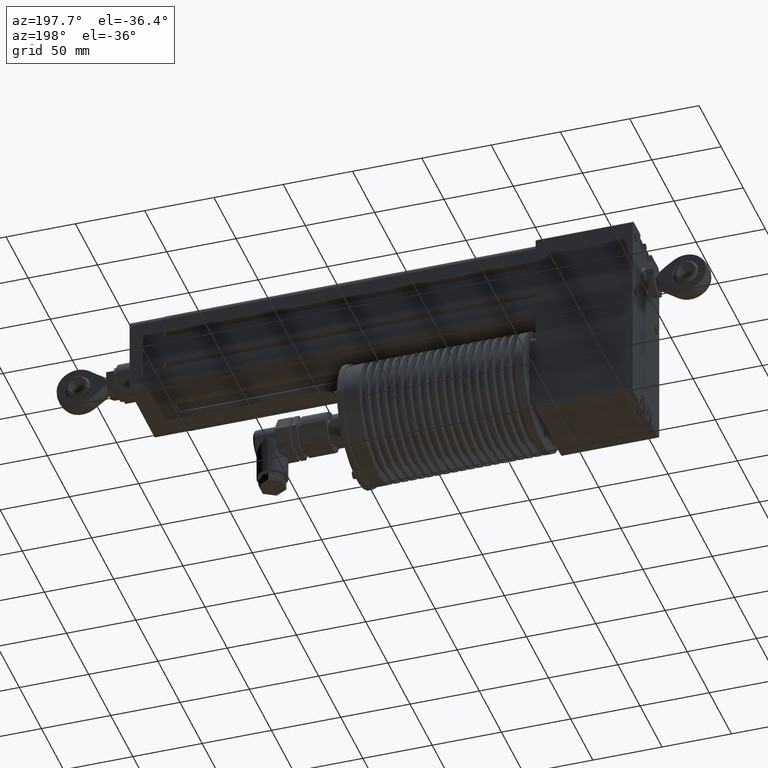
[diagram: clean part render]
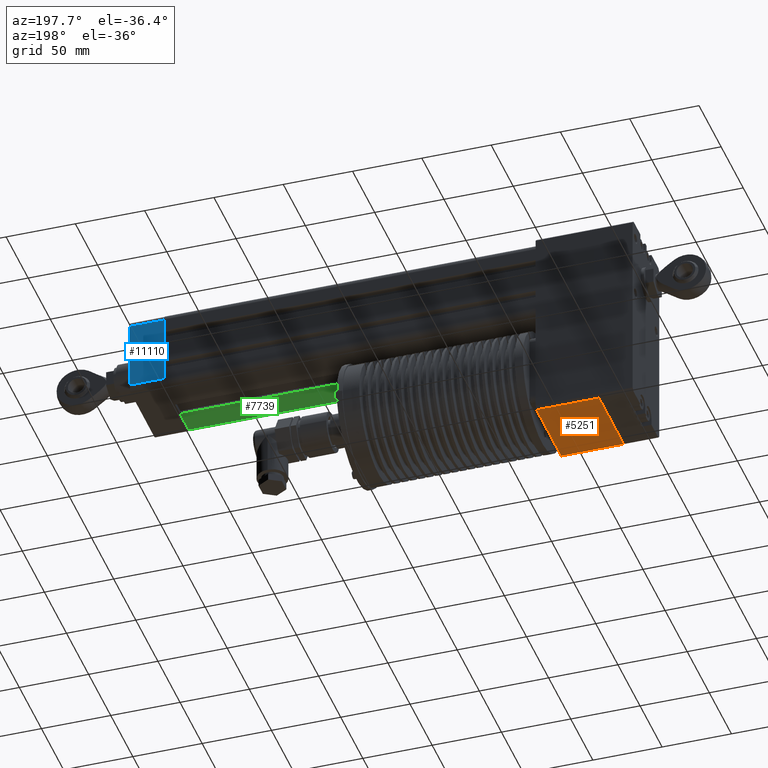
[diagram: same view with three faces highlighted in distinct colors, each labeled with its STEP entity id]
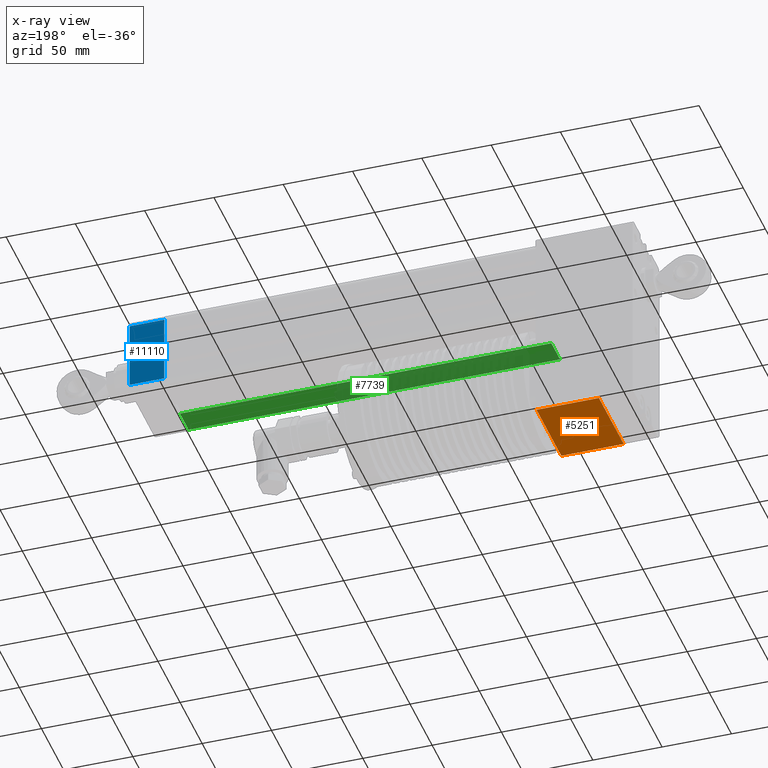
[diagram: x-ray of the same camera — body ghosted, the three highlighted faces saturated]
A machine part, auxiliary view with three faces highlighted in distinct colors.
The next image is the same camera in x-ray (body ghosted, the three faces saturated) — at least one of them is partly hidden behind the body in this view.
Their STEP definitions:

[orange] entity #5251 — the highlighted planar face has unit normal (-0, 0, -1).
#3421=CARTESIAN_POINT('',(85.0,28.000000000000007,-20.0));
#3422=VERTEX_POINT('',#3421);
#3429=CARTESIAN_POINT('',(85.0,-28.000000000000007,-20.0));
#3430=VERTEX_POINT('',#3429);
#3431=CARTESIAN_POINT('',(85.0,28.000000000000007,-20.0));
#3432=DIRECTION('',(0.0,-1.0,0.0));
#3433=VECTOR('',#3432,56.000000000000014);
#3434=LINE('',#3431,#3433);
#3435=EDGE_CURVE('',#3422,#3430,#3434,.T.);
#5209=CARTESIAN_POINT('',(85.0,-28.000000000000007,25.0));
#5210=VERTEX_POINT('',#5209);
#5219=CARTESIAN_POINT('',(85.0,-28.000000000000007,-20.0));
#5220=DIRECTION('',(0.0,0.0,1.0));
#5221=VECTOR('',#5220,45.0);
#5222=LINE('',#5219,#5221);
#5223=EDGE_CURVE('',#3430,#5210,#5222,.T.);
#5228=CARTESIAN_POINT('',(85.0,30.000000000000007,-20.0));
#5229=DIRECTION('',(1.0,0.0,0.0));
#5230=DIRECTION('',(0.0,0.0,-1.0));
#5231=AXIS2_PLACEMENT_3D('',#5228,#5229,#5230);
#5232=PLANE('',#5231);
#5233=ORIENTED_EDGE('',*,*,#5223,.F.);
#5234=ORIENTED_EDGE('',*,*,#3435,.F.);
#5235=CARTESIAN_POINT('',(85.0,28.000000000000007,25.0));
#5236=VERTEX_POINT('',#5235);
#5237=CARTESIAN_POINT('',(85.0,28.000000000000007,25.0));
#5238=DIRECTION('',(0.0,0.0,-1.0));
#5239=VECTOR('',#5238,45.0);
#5240=LINE('',#5237,#5239);
#5241=EDGE_CURVE('',#5236,#3422,#5240,.T.);
#5242=ORIENTED_EDGE('',*,*,#5241,.F.);
#5243=CARTESIAN_POINT('',(85.0,28.000000000000007,25.0));
#5244=DIRECTION('',(0.0,-1.0,0.0));
#5245=VECTOR('',#5244,56.000000000000014);
#5246=LINE('',#5243,#5245);
#5247=EDGE_CURVE('',#5236,#5210,#5246,.T.);
#5248=ORIENTED_EDGE('',*,*,#5247,.T.);
#5249=EDGE_LOOP('',(#5233,#5234,#5242,#5248));
#5250=FACE_OUTER_BOUND('',#5249,.T.);
#5251=ADVANCED_FACE('',(#5250),#5232,.T.);

[blue] entity #11110 — the highlighted planar face has unit normal (0, 1, 0).
#10918=CARTESIAN_POINT('',(-40.0,31.250000000000167,24.999999999999996));
#10919=VERTEX_POINT('',#10918);
#10927=CARTESIAN_POINT('',(-40.0,31.250000000000167,-25.0));
#10928=VERTEX_POINT('',#10927);
#10929=CARTESIAN_POINT('',(-40.0,31.250000000000167,-25.0));
#10930=DIRECTION('',(0.0,0.0,1.0));
#10931=VECTOR('',#10930,50.0);
#10932=LINE('',#10929,#10931);
#10933=EDGE_CURVE('',#10928,#10919,#10932,.T.);
#11067=CARTESIAN_POINT('',(-15.0,31.250000000000171,-25.0));
#11068=VERTEX_POINT('',#11067);
#11078=CARTESIAN_POINT('',(-40.0,31.250000000000167,-25.0));
#11079=DIRECTION('',(1.0,0.0,0.0));
#11080=VECTOR('',#11079,25.0);
#11081=LINE('',#11078,#11080);
#11082=EDGE_CURVE('',#10928,#11068,#11081,.T.);
#11087=CARTESIAN_POINT('',(-40.0,31.250000000000167,30.0));
#11088=DIRECTION('',(0.0,1.0,0.0));
#11089=DIRECTION('',(0.0,0.0,1.0));
#11090=AXIS2_PLACEMENT_3D('',#11087,#11088,#11089);
#11091=PLANE('',#11090);
#11092=ORIENTED_EDGE('',*,*,#11082,.F.);
#11093=ORIENTED_EDGE('',*,*,#10933,.T.);
#11094=CARTESIAN_POINT('',(-15.0,31.250000000000171,24.999999999999996));
#11095=VERTEX_POINT('',#11094);
#11096=CARTESIAN_POINT('',(-15.0,31.250000000000171,24.999999999999996));
#11097=DIRECTION('',(-1.0,0.0,0.0));
#11098=VECTOR('',#11097,25.0);
#11099=LINE('',#11096,#11098);
#11100=EDGE_CURVE('',#11095,#10919,#11099,.T.);
#11101=ORIENTED_EDGE('',*,*,#11100,.F.);
#11102=CARTESIAN_POINT('',(-15.0,31.250000000000171,24.999999999999996));
#11103=DIRECTION('',(0.0,0.0,-1.0));
#11104=VECTOR('',#11103,50.0);
#11105=LINE('',#11102,#11104);
#11106=EDGE_CURVE('',#11095,#11068,#11105,.T.);
#11107=ORIENTED_EDGE('',*,*,#11106,.T.);
#11108=EDGE_LOOP('',(#11092,#11093,#11101,#11107));
#11109=FACE_OUTER_BOUND('',#11108,.T.);
#11110=ADVANCED_FACE('',(#11109),#11091,.T.);

[green] entity #7739 — the highlighted planar face has unit normal (0, 0, -1).
#7681=CARTESIAN_POINT('',(232.0,25.149999999999977,30.150000000000034));
#7682=VERTEX_POINT('',#7681);
#7690=CARTESIAN_POINT('',(500.0,25.149999999999977,30.150000000000034));
#7691=VERTEX_POINT('',#7690);
#7692=CARTESIAN_POINT('',(500.0,25.149999999999977,30.150000000000034));
#7693=DIRECTION('',(-1.0,0.0,0.0));
#7694=VECTOR('',#7693,268.0);
#7695=LINE('',#7692,#7694);
#7696=EDGE_CURVE('',#7691,#7682,#7695,.T.);
#7709=CARTESIAN_POINT('',(500.0,25.149999999999977,30.150000000000034));
#7710=DIRECTION('',(0.0,0.0,1.0));
#7711=DIRECTION('',(1.0,0.0,0.0));
#7712=AXIS2_PLACEMENT_3D('',#7709,#7710,#7711);
#7713=PLANE('',#7712);
#7714=CARTESIAN_POINT('',(232.0,5.500000000000000,30.150000000000034));
#7715=VERTEX_POINT('',#7714);
#7716=CARTESIAN_POINT('',(232.0,25.149999999999977,30.150000000000034));
#7717=DIRECTION('',(0.0,-1.0,0.0));
#7718=VECTOR('',#7717,19.649999999999977);
#7719=LINE('',#7716,#7718);
#7720=EDGE_CURVE('',#7682,#7715,#7719,.T.);
#7721=ORIENTED_EDGE('',*,*,#7720,.T.);
#7722=CARTESIAN_POINT('',(500.0,5.500000000000000,30.150000000000034));
#7723=VERTEX_POINT('',#7722);
#7724=CARTESIAN_POINT('',(500.0,5.500000000000000,30.150000000000034));
#7725=DIRECTION('',(-1.0,0.0,0.0));
#7726=VECTOR('',#7725,268.0);
#7727=LINE('',#7724,#7726);
#7728=EDGE_CURVE('',#7723,#7715,#7727,.T.);
#7729=ORIENTED_EDGE('',*,*,#7728,.F.);
#7730=CARTESIAN_POINT('',(500.0,25.149999999999977,30.150000000000034));
#7731=DIRECTION('',(0.0,-1.0,0.0));
#7732=VECTOR('',#7731,19.649999999999977);
#7733=LINE('',#7730,#7732);
#7734=EDGE_CURVE('',#7691,#7723,#7733,.T.);
#7735=ORIENTED_EDGE('',*,*,#7734,.F.);
#7736=ORIENTED_EDGE('',*,*,#7696,.T.);
#7737=EDGE_LOOP('',(#7721,#7729,#7735,#7736));
#7738=FACE_OUTER_BOUND('',#7737,.T.);
#7739=ADVANCED_FACE('',(#7738),#7713,.T.);